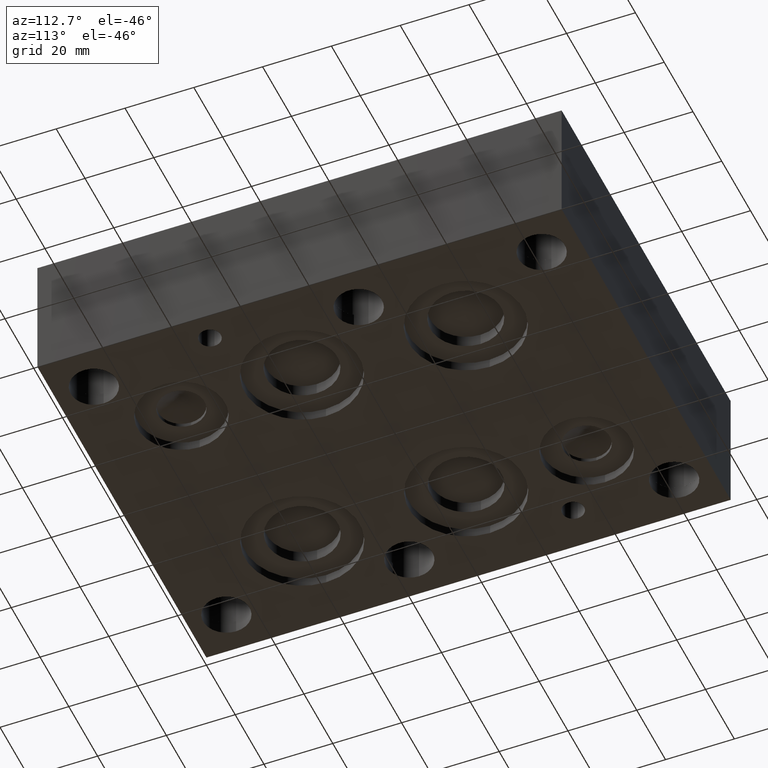
[diagram: clean part render]
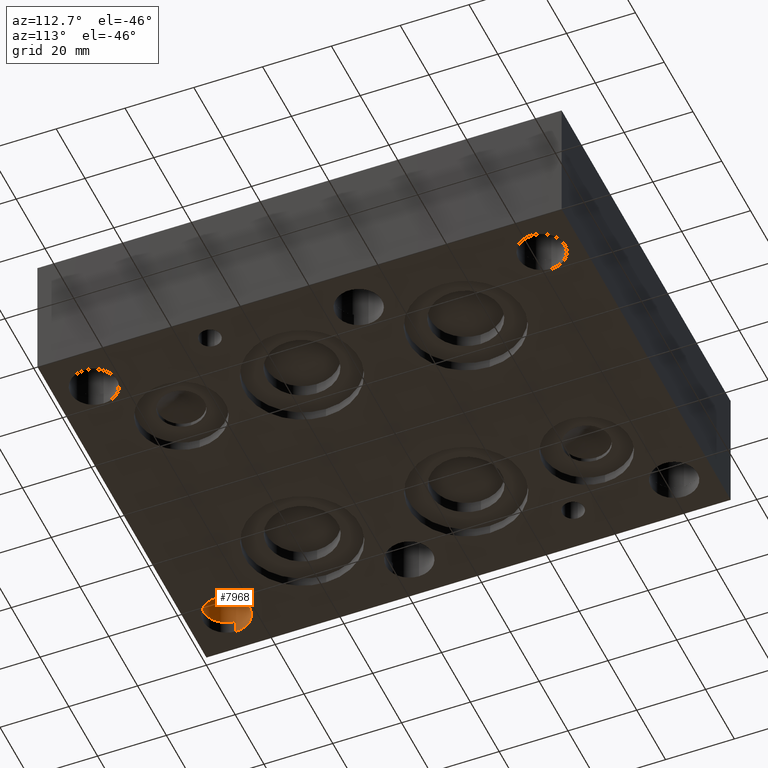
[diagram: same view with one face highlighted and labeled with its STEP entity id]
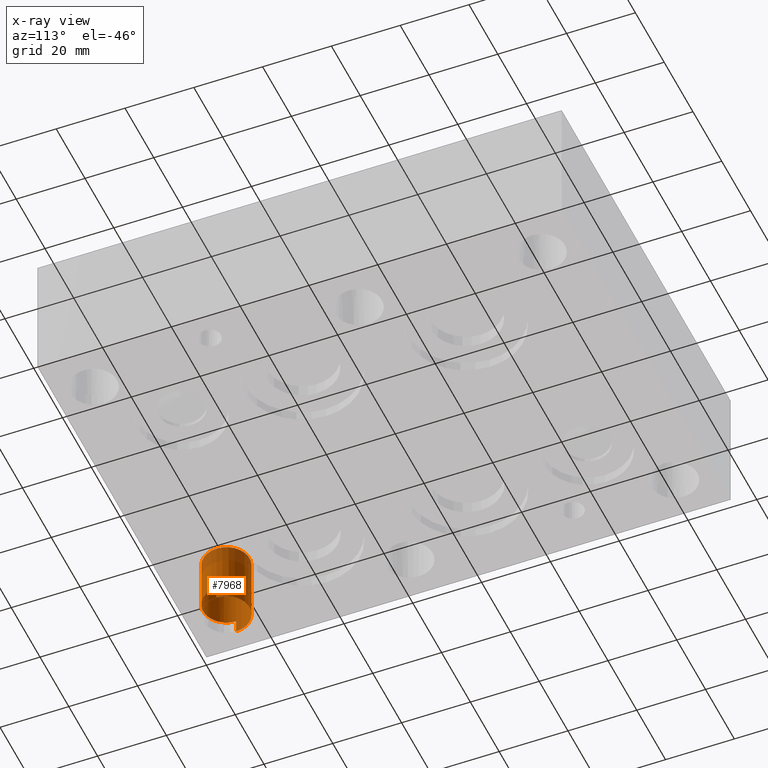
[diagram: x-ray of the same camera — body ghosted, the highlighted face saturated]
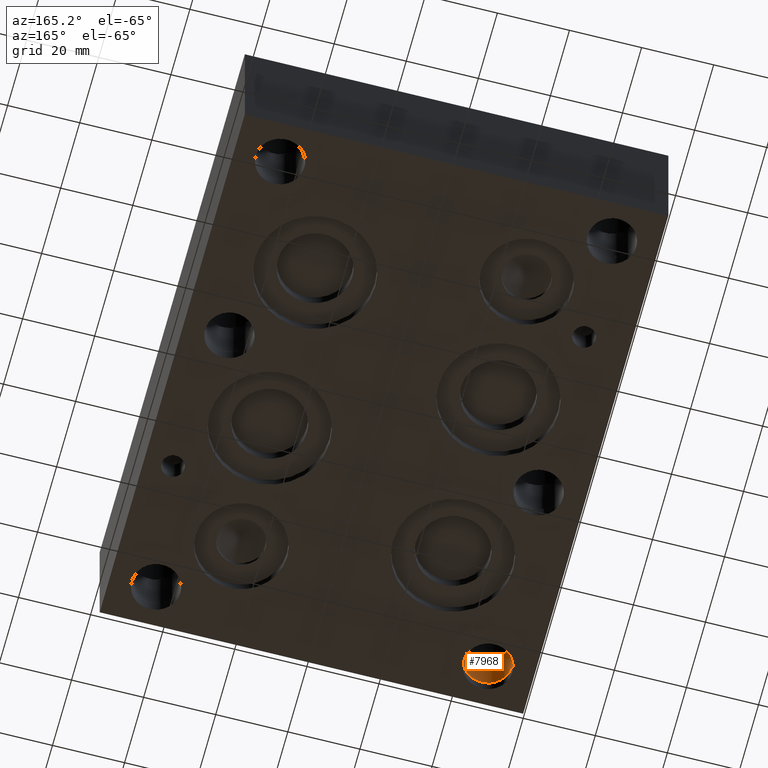
[diagram: same view with one face highlighted and labeled with its STEP entity id]
A machine part, auxiliary view. The second image highlights one B-rep face of the part: STEP entity #7968.
The next image is the same camera in x-ray: the body ghosted, the highlighted face saturated — about 19% of this face is hidden behind the body in this view.
A second angle (auxiliary view) of the same face is appended — the face is thin or edge-on in the first view.
In plain terms, the highlighted cylindrical surface (bore or boss wall) has radius 6.7437 mm, axis along (0, 0, 1).
Its self-contained STEP definition (entity closure, byte-faithful):
#76=CIRCLE('',#8343,6.7437);
#77=CIRCLE('',#8344,6.7437);
#91=CIRCLE('',#8365,6.7437);
#153=CYLINDRICAL_SURFACE('',#8368,6.7437);
#373=B_SPLINE_CURVE_WITH_KNOTS('',3,(#13310,#13311,#13312,#13313,#13314,
#13315,#13316,#13317,#13318,#13319,#13320,#13321,#13322,#13323,#13324,#13325,
#13326,#13327,#13328,#13329,#13330,#13331,#13332),.UNSPECIFIED.,.F.,.F.,
(4,3,2,2,2,2,2,2,2,2,4),(-0.000634895510112516,0.,0.253839644422829,0.507679288845658,
0.761254734487524,1.01483018012939,1.26840562577125,1.52198107141312,1.77582071583595,
2.02966036025878,2.03029525576889),.UNSPECIFIED.);
#939=FACE_OUTER_BOUND('',#1417,.T.);
#1417=EDGE_LOOP('',(#6830,#6831,#6832,#6833,#6834,#6835,#6836,#6837));
#2203=LINE('',#13336,#2982);
#2204=LINE('',#13338,#2983);
#2225=LINE('',#13566,#3004);
#2982=VECTOR('',#9747,10.);
#2983=VECTOR('',#9748,10.);
#3004=VECTOR('',#9877,6.7437);
#3674=VERTEX_POINT('',#13308);
#3675=VERTEX_POINT('',#13309);
#3676=VERTEX_POINT('',#13335);
#3677=VERTEX_POINT('',#13337);
#3704=VERTEX_POINT('',#13522);
#3715=VERTEX_POINT('',#13559);
#4713=EDGE_CURVE('',#3674,#3675,#373,.T.);
#4715=EDGE_CURVE('',#3675,#3676,#2203,.T.);
#4716=EDGE_CURVE('',#3677,#3674,#2204,.T.);
#4753=EDGE_CURVE('',#3677,#3704,#76,.T.);
#4754=EDGE_CURVE('',#3704,#3676,#77,.T.);
#4772=EDGE_CURVE('',#3715,#3715,#91,.T.);
#4775=EDGE_CURVE('',#3715,#3704,#2225,.T.);
#6830=ORIENTED_EDGE('',*,*,#4772,.T.);
#6831=ORIENTED_EDGE('',*,*,#4775,.T.);
#6832=ORIENTED_EDGE('',*,*,#4753,.F.);
#6833=ORIENTED_EDGE('',*,*,#4716,.T.);
#6834=ORIENTED_EDGE('',*,*,#4713,.T.);
#6835=ORIENTED_EDGE('',*,*,#4715,.T.);
#6836=ORIENTED_EDGE('',*,*,#4754,.F.);
#6837=ORIENTED_EDGE('',*,*,#4775,.F.);
#7968=ADVANCED_FACE('',(#939),#153,.F.);
#8343=AXIS2_PLACEMENT_3D('',#13523,#9820,#9821);
#8344=AXIS2_PLACEMENT_3D('',#13524,#9822,#9823);
#8365=AXIS2_PLACEMENT_3D('',#13560,#9868,#9869);
#8368=AXIS2_PLACEMENT_3D('',#13565,#9875,#9876);
#9747=DIRECTION('',(0.,0.,-1.));
#9748=DIRECTION('',(0.,0.,1.));
#9820=DIRECTION('center_axis',(0.,0.,1.));
#9821=DIRECTION('ref_axis',(1.,0.,0.));
#9822=DIRECTION('center_axis',(0.,0.,1.));
#9823=DIRECTION('ref_axis',(1.,0.,0.));
#9868=DIRECTION('center_axis',(0.,0.,1.));
#9869=DIRECTION('ref_axis',(1.,0.,0.));
#9875=DIRECTION('center_axis',(0.,0.,1.));
#9876=DIRECTION('ref_axis',(1.,0.,0.));
#9877=DIRECTION('',(0.,0.,-1.));
#13308=CARTESIAN_POINT('',(19.4436970103572,11.11885,3.89348));
#13309=CARTESIAN_POINT('',(5.95630298964285,11.11885,3.89348));
#13310=CARTESIAN_POINT('Ctrl Pts',(19.4436970103572,11.11885,3.89348));
#13311=CARTESIAN_POINT('Ctrl Pts',(19.4436950169294,11.116732980703,3.89348230181104));
#13312=CARTESIAN_POINT('Ctrl Pts',(19.443692026952,11.1146163133633,3.89348460324145));
#13313=CARTESIAN_POINT('Ctrl Pts',(19.4436880414207,11.1125,3.89348690428902));
#13314=CARTESIAN_POINT('Ctrl Pts',(19.4420945731571,10.266369852513,3.8944068936199));
#13315=CARTESIAN_POINT('Ctrl Pts',(19.271417806434,9.36411688577104,3.89538826437824));
#13316=CARTESIAN_POINT('Ctrl Pts',(18.5810020682968,7.70485493047417,3.89719366449771));
#13317=CARTESIAN_POINT('Ctrl Pts',(18.0612630939309,6.94784594312719,3.89801767522282));
#13318=CARTESIAN_POINT('Ctrl Pts',(16.8636828927686,5.7534512987063,3.89931805976622));
#13319=CARTESIAN_POINT('Ctrl Pts',(16.1061610133617,5.23610442625223,3.89988148705157));
#13320=CARTESIAN_POINT('Ctrl Pts',(14.4469453103323,4.55012877541326,3.90062864071258));
#13321=CARTESIAN_POINT('Ctrl Pts',(13.5452514854729,4.3815,3.90081234841871));
#13322=CARTESIAN_POINT('Ctrl Pts',(11.8547485145271,4.3815,3.90081234841871));
#13323=CARTESIAN_POINT('Ctrl Pts',(10.9530546896677,4.55012877541326,3.90062864071258));
#13324=CARTESIAN_POINT('Ctrl Pts',(9.2938389866383,5.23610442625223,3.89988148705157));
#13325=CARTESIAN_POINT('Ctrl Pts',(8.53631710723143,5.7534512987063,3.89931805976618));
#13326=CARTESIAN_POINT('Ctrl Pts',(7.33873690606907,6.9478459431272,3.89801767522278));
#13327=CARTESIAN_POINT('Ctrl Pts',(6.81899793170319,7.70485493047417,3.89719366449771));
#13328=CARTESIAN_POINT('Ctrl Pts',(6.12858219356597,9.36411688577105,3.89538826437824));
#13329=CARTESIAN_POINT('Ctrl Pts',(5.95790542684286,10.266369852513,3.8944068936199));
#13330=CARTESIAN_POINT('Ctrl Pts',(5.95630797304805,11.1146163133633,3.89348460324145));
#13331=CARTESIAN_POINT('Ctrl Pts',(5.95630498307056,11.116732980703,3.89348230181104));
#13332=CARTESIAN_POINT('Ctrl Pts',(5.95630298964285,11.11885,3.89348));
#13335=CARTESIAN_POINT('',(5.95630298964285,11.11885,0.));
#13336=CARTESIAN_POINT('',(5.95630298964285,11.11885,1.94674));
#13337=CARTESIAN_POINT('',(19.4436970103572,11.11885,0.));
#13338=CARTESIAN_POINT('',(19.4436970103572,11.11885,1.94674));
#13522=CARTESIAN_POINT('',(5.9563,11.1252,0.));
#13523=CARTESIAN_POINT('Origin',(12.7,11.1252,0.));
#13524=CARTESIAN_POINT('Origin',(12.7,11.1252,0.));
#13559=CARTESIAN_POINT('',(5.9563,11.1252,19.05));
#13560=CARTESIAN_POINT('Origin',(12.7,11.1252,19.05));
#13565=CARTESIAN_POINT('Origin',(12.7,11.1252,-158.057451107522));
#13566=CARTESIAN_POINT('',(5.9563,11.1252,-158.057451107522));